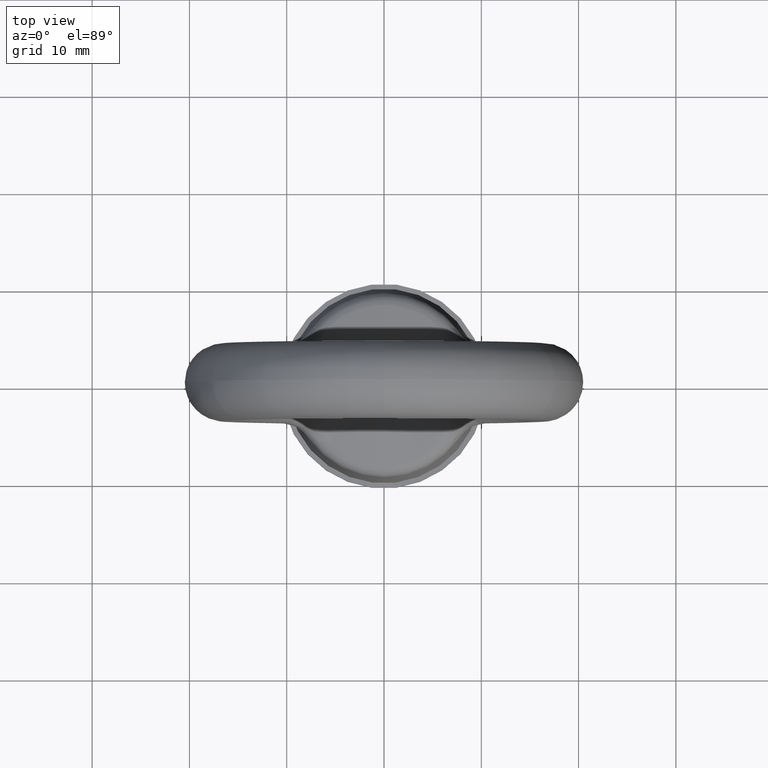
[diagram: clean part render]
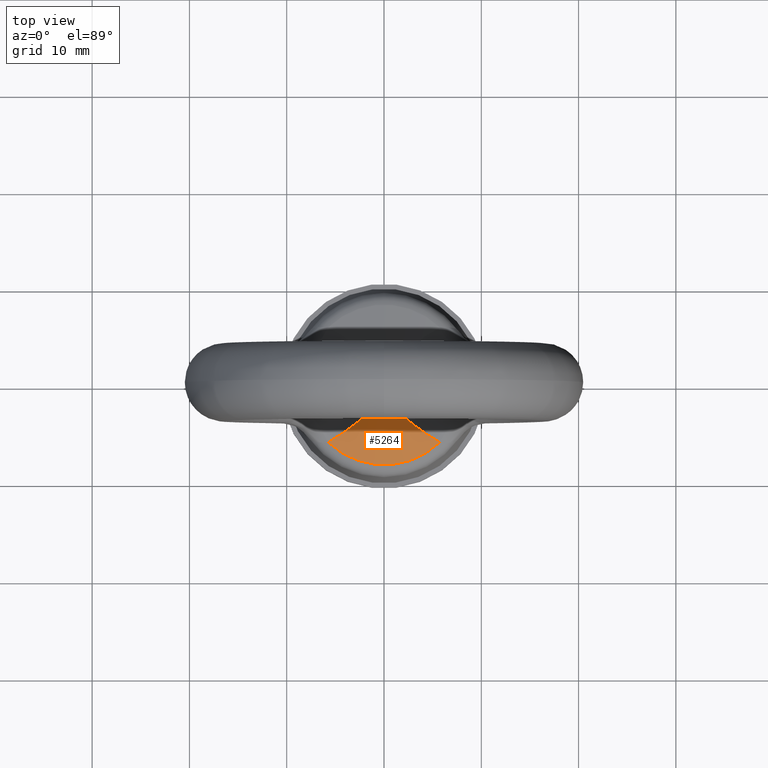
[diagram: same view with one face highlighted and labeled with its STEP entity id]
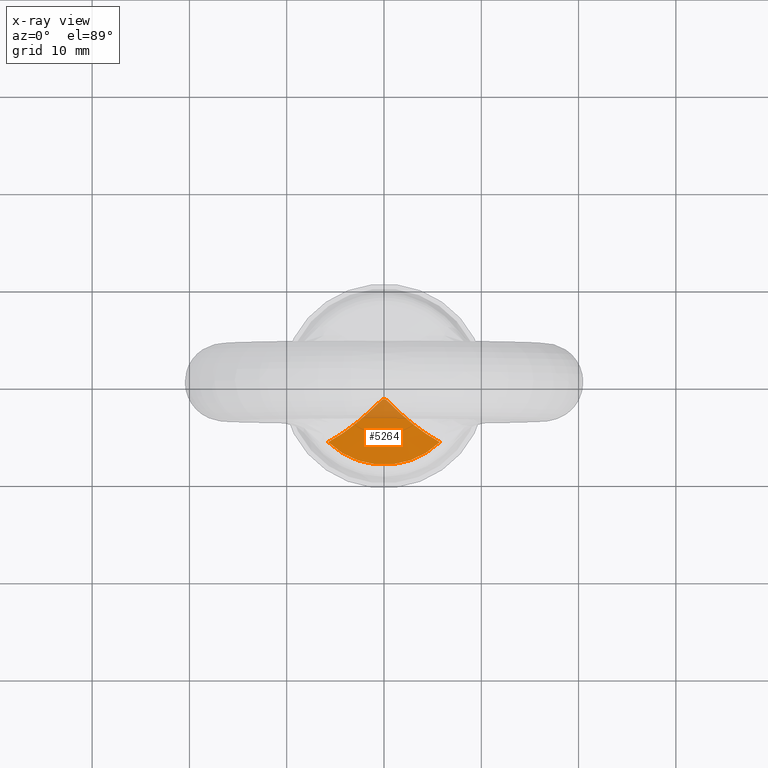
[diagram: x-ray of the same camera — body ghosted, the highlighted face saturated]
A machine part, top view. The second image highlights one B-rep face of the part: STEP entity #5264.
The next image is the same camera in x-ray: the body ghosted, the highlighted face saturated — about 11% of this face is hidden behind the body in this view.
In plain terms, the highlighted conical surface has half-angle 80.922 deg.
Its self-contained STEP definition (entity closure, byte-faithful):
#1927 = CONICAL_SURFACE ( 'NONE', #2014, 6258.368666053985200, 1.412349682501745000 ) ;
#2010 = FACE_OUTER_BOUND ( 'NONE', #5068, .T. ) ;
#2011 = DIRECTION ( 'NONE',  ( -1.000000000000000000, 0.0000000000000000000, 0.0000000000000000000 ) ) ;
#2012 = DIRECTION ( 'NONE',  ( 0.0000000000000000000, 0.0000000000000000000, -1.000000000000000000 ) ) ;
#2013 = CARTESIAN_POINT ( 'NONE',  ( 0.0000000000000000000, 0.0000000000000000000, -1012.500000000000000 ) ) ;
#2014 = AXIS2_PLACEMENT_3D ( 'NONE', #2013, #2012, #2011 ) ;
#5032 = EDGE_CURVE ( 'NONE', #5033, #5034, #5381, .T. ) ;
#5033 = VERTEX_POINT ( 'NONE', #5449 ) ;
#5034 = VERTEX_POINT ( 'NONE', #5448 ) ;
#5035 = ORIENTED_EDGE ( 'NONE', *, *, #5036, .T. ) ;
#5036 = EDGE_CURVE ( 'NONE', #5034, #5033, #5446, .T. ) ;
#5068 = EDGE_LOOP ( 'NONE', ( #5265, #5035 ) ) ;
#5264 = ADVANCED_FACE ( 'NONE', ( #2010 ), #1927, .T. ) ;
#5265 = ORIENTED_EDGE ( 'NONE', *, *, #5032, .T. ) ;
#5377 = DIRECTION ( 'NONE',  ( 1.000000000000000000, 0.0000000000000000000, 0.0000000000000000000 ) ) ;
#5378 = DIRECTION ( 'NONE',  ( 0.0000000000000000000, 0.0000000000000000000, 1.000000000000000000 ) ) ;
#5379 = CARTESIAN_POINT ( 'NONE',  ( 0.0000000000000000000, 0.0000000000000000000, -13.81535031278956000 ) ) ;
#5380 = AXIS2_PLACEMENT_3D ( 'NONE', #5379, #5378, #5377 ) ;
#5381 = CIRCLE ( 'NONE', #5380, 8.231947182446498700 ) ;
#5413 = CARTESIAN_POINT ( 'NONE',  ( -5.738277239094090400, -5.902298598163569400, -13.81535031278956000 ) ) ;
#5414 = CARTESIAN_POINT ( 'NONE',  ( -4.673511963967508000, -5.323007858356579200, -13.63038657917780600 ) ) ;
#5415 = CARTESIAN_POINT ( 'NONE',  ( -3.679773617606466400, -4.639459339662876000, -13.44475520329474000 ) ) ;
#5416 = CARTESIAN_POINT ( 'NONE',  ( -2.271114355319336000, -3.493900158111249000, -13.16534644226088200 ) ) ;
#5417 = CARTESIAN_POINT ( 'NONE',  ( -1.817720432750634400, -3.092953069939405000, -13.07236238620128600 ) ) ;
#5418 = CARTESIAN_POINT ( 'NONE',  ( -1.160207930479036700, -2.466916878499904300, -12.93530845962066100 ) ) ;
#5419 = CARTESIAN_POINT ( 'NONE',  ( -0.9454363134816450300, -2.253328097658793700, -12.88989826007391800 ) ) ;
#5420 = CARTESIAN_POINT ( 'NONE',  ( -0.6224659932115590400, -1.933326592552556000, -12.82436710738610800 ) ) ;
#5421 = CARTESIAN_POINT ( 'NONE',  ( -0.5150343746159208300, -1.826057545424057300, -12.80283803742739400 ) ) ;
#5422 = CARTESIAN_POINT ( 'NONE',  ( -0.3449311486669425200, -1.675477029624106400, -12.77324246876458100 ) ) ;
#5423 = CARTESIAN_POINT ( 'NONE',  ( -0.2868835391719343200, -1.626823923258704300, -12.76379378469511700 ) ) ;
#5424 = CARTESIAN_POINT ( 'NONE',  ( -0.1587060202744221000, -1.543511105412948900, -12.74776055123440000 ) ) ;
#5425 = CARTESIAN_POINT ( 'NONE',  ( -0.08672953230126009800, -1.508454638517289000, -12.74110409679677000 ) ) ;
#5426 = CARTESIAN_POINT ( 'NONE',  ( 0.06979698234040612700, -1.503803099337577300, -12.74022026886010100 ) ) ;
#5427 = CARTESIAN_POINT ( 'NONE',  ( 0.1445359932094381300, -1.536263697218036800, -12.74637733999787100 ) ) ;
#5428 = CARTESIAN_POINT ( 'NONE',  ( 0.2742604400446726500, -1.617020501196122300, -12.76189782829038700 ) ) ;
#5429 = CARTESIAN_POINT ( 'NONE',  ( 0.3328159415219253400, -1.665343332043697200, -12.77126674691851500 ) ) ;
#5430 = CARTESIAN_POINT ( 'NONE',  ( 0.5042937344176659000, -1.815529910741221500, -12.80074138545900400 ) ) ;
#5431 = CARTESIAN_POINT ( 'NONE',  ( 0.6121922362219246500, -1.923217171641452300, -12.82232379250108100 ) ) ;
#5432 = CARTESIAN_POINT ( 'NONE',  ( 0.9362879096101236500, -2.244132979965468800, -12.88796492309478100 ) ) ;
#5433 = CARTESIAN_POINT ( 'NONE',  ( 1.151571205808485700, -2.458511664539456900, -12.93350174596855100 ) ) ;
#5434 = CARTESIAN_POINT ( 'NONE',  ( 1.811178315761674100, -3.087078342972995800, -13.07101127879797700 ) ) ;
#5441 = CARTESIAN_POINT ( 'NONE',  ( 2.266615808705893200, -3.490025628042442700, -13.16443501885485500 ) ) ;
#5442 = CARTESIAN_POINT ( 'NONE',  ( 3.674541215850311900, -4.635633335177375100, -13.44375532908876100 ) ) ;
#5443 = CARTESIAN_POINT ( 'NONE',  ( 4.669381125078205100, -5.320760455316565700, -13.62966899812800600 ) ) ;
#5444 = CARTESIAN_POINT ( 'NONE',  ( 5.738277239094090400, -5.902298598163569400, -13.81535031278956000 ) ) ;
#5446 = B_SPLINE_CURVE_WITH_KNOTS ( 'NONE', 3,
 ( #5444, #5443, #5442, #5441, #5434, #5433, #5432, #5431, #5430, #5429, #5428, #5427, #5426, #5425, #5424, #5423, #5422, #5421, #5420, #5419, #5418, #5417, #5416, #5415, #5414, #5413 ),
 .UNSPECIFIED., .F., .F.,
 ( 4, 2, 2, 2, 2, 2, 2, 2, 2, 2, 2, 2, 4 ),
 ( 5.553824967135426600E-018, 0.003665937879873416900, 0.005498906819810123000, 0.006415391289778475800, 0.006873633524762652300, 0.007102754642254740900, 0.007331875759746829500, 0.007560996877238918200, 0.007790117994731006800, 0.008248360229715182400, 0.009164844699683536900, 0.01099781363962024600, 0.01466375151949366100 ),
 .UNSPECIFIED. ) ;
#5448 = CARTESIAN_POINT ( 'NONE',  ( 5.738277239094090400, -5.902298598163569400, -13.81535031278956000 ) ) ;
#5449 = CARTESIAN_POINT ( 'NONE',  ( -5.738277239094090400, -5.902298598163569400, -13.81535031278956000 ) ) ;